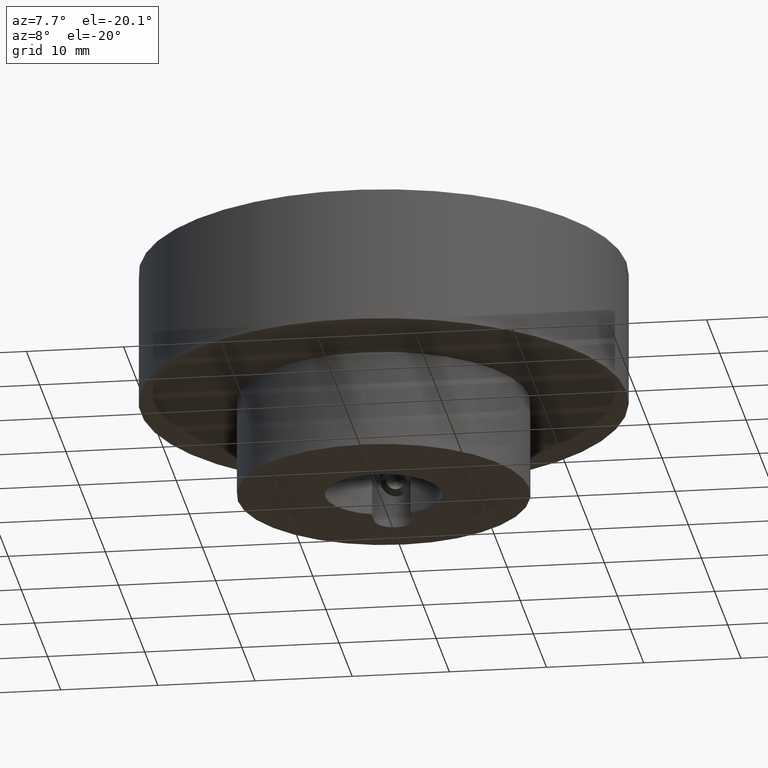
[diagram: clean part render]
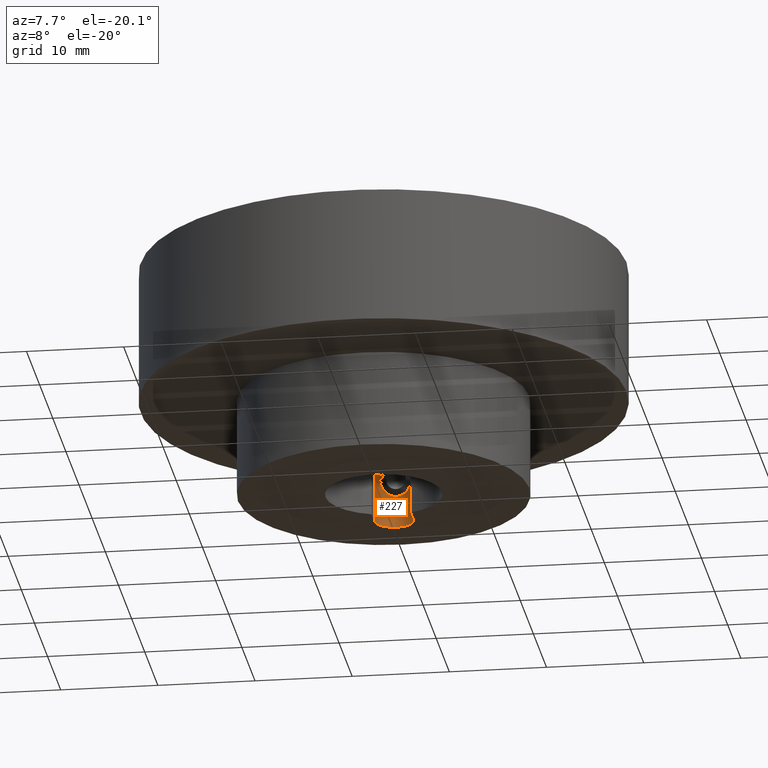
[diagram: same view with one face highlighted and labeled with its STEP entity id]
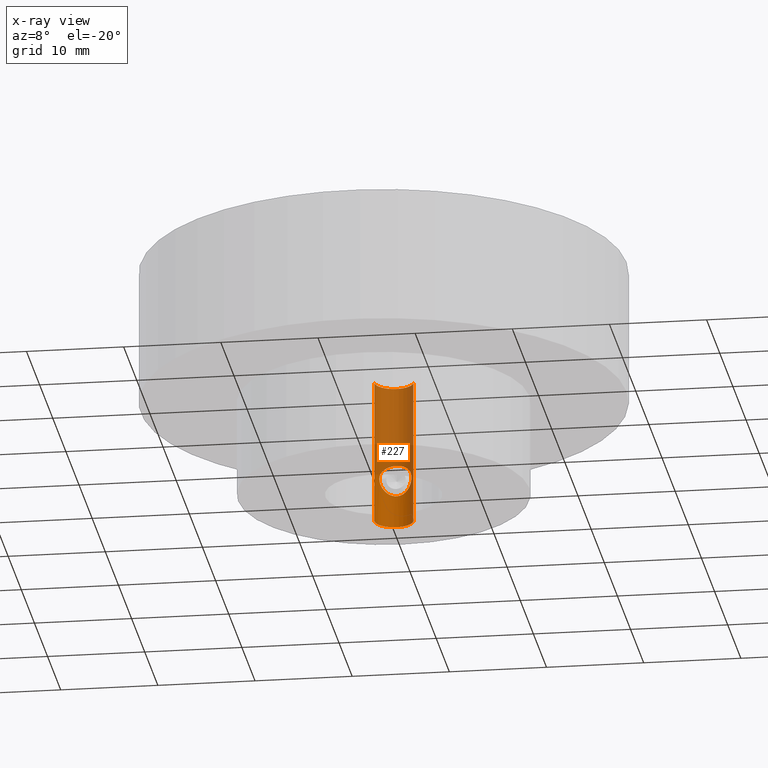
[diagram: x-ray of the same camera — body ghosted, the highlighted face saturated]
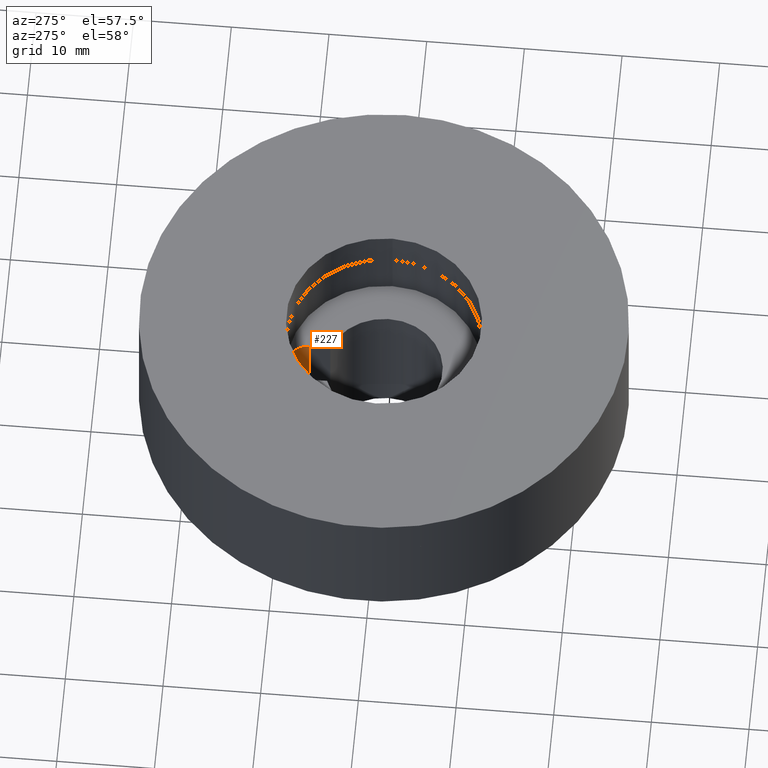
[diagram: same view with one face highlighted and labeled with its STEP entity id]
A machine part, auxiliary view. The second image highlights one B-rep face of the part: STEP entity #227.
The next image is the same camera in x-ray: the body ghosted, the highlighted face saturated — about 69% of this face is hidden behind the body in this view.
A second angle (auxiliary view) of the same face is appended — the face is thin or edge-on in the first view.
In plain terms, the highlighted cylindrical surface (edge-blend (fillet) strip) has radius 2 mm, axis along (-0, -0, 1).
Its self-contained STEP definition (entity closure, byte-faithful):
#227 = ADVANCED_FACE( '', ( #278, #279 ), #280, .F. );
#278 = FACE_BOUND( '', #350, .T. );
#279 = FACE_OUTER_BOUND( '', #351, .T. );
#280 = CYLINDRICAL_SURFACE( '', #352, 2.00000000000000 );
#350 = EDGE_LOOP( '', ( #459 ) );
#351 = EDGE_LOOP( '', ( #460, #461, #462, #463 ) );
#352 = AXIS2_PLACEMENT_3D( '', #464, #465, #466 );
#459 = ORIENTED_EDGE( '', *, *, #579, .T. );
#460 = ORIENTED_EDGE( '', *, *, #567, .T. );
#461 = ORIENTED_EDGE( '', *, *, #578, .F. );
#462 = ORIENTED_EDGE( '', *, *, #576, .F. );
#463 = ORIENTED_EDGE( '', *, *, #570, .T. );
#464 = CARTESIAN_POINT( '', ( 0.000000000000000, 7.80000000000000, 27.3287803508712 ) );
#465 = DIRECTION( '', ( -0.000000000000000, -0.000000000000000, 1.00000000000000 ) );
#466 = DIRECTION( '', ( -1.00000000000000, 6.12303176911189E-017, 0.000000000000000 ) );
#567 = EDGE_CURVE( '', #612, #616, #618, .F. );
#570 = EDGE_CURVE( '', #623, #612, #624, .T. );
#576 = EDGE_CURVE( '', #623, #633, #634, .F. );
#578 = EDGE_CURVE( '', #633, #616, #636, .T. );
#579 = EDGE_CURVE( '', #637, #637, #638, .T. );
#612 = VERTEX_POINT( '', #692 );
#616 = VERTEX_POINT( '', #697 );
#618 = CIRCLE( '', #700, 2.00000000000000 );
#623 = VERTEX_POINT( '', #705 );
#624 = LINE( '', #706, #707 );
#633 = VERTEX_POINT( '', #719 );
#634 = CIRCLE( '', #720, 2.00000000000000 );
#636 = LINE( '', #723, #724 );
#637 = VERTEX_POINT( '', #725 );
#638 = B_SPLINE_CURVE_WITH_KNOTS( '', 3, ( #726, #727, #728, #729, #730, #731, #732, #733, #734, #735, #736, #737, #738, #739, #740, #741, #742, #743, #744, #745, #746, #747, #748, #749, #750, #751, #752, #753, #754, #755, #756, #757, #758, #759, #760, #761, #762, #763, #764, #765, #766, #767, #768, #769, #770, #771, #772, #773, #774, #775, #776, #777, #778, #779 ), .UNSPECIFIED., .T., .F., ( 2, 2, 2, 2, 2, 2, 2, 2, 2, 2, 2, 2, 2, 2, 2, 2, 2, 2, 2, 2, 2, 2, 2, 2, 2, 2, 2, 2, 2 ), ( -0.000344037228202838, 0.000000000000000, 0.000688074456405687, 0.00103211168460853, 0.00137614891281138, 0.00172018614101423, 0.00206422336921707, 0.00240826059741992, 0.00275229782562277, 0.00309633505382561, 0.00344037228202846, 0.00412844673843415, 0.00481652119483985, 0.00516055842304269, 0.00550459565124554, 0.00584863287944839, 0.00619267010765123, 0.00688074456405692, 0.00722478179225977, 0.00756881902046262, 0.00791285624866546, 0.00825689347686831, 0.00860093070507115, 0.00894496793327400, 0.00963304238967968, 0.0103211168460854, 0.0106651540742882, 0.0110091913024910, 0.0116972657588967 ), .UNSPECIFIED. );
#692 = CARTESIAN_POINT( '', ( -2.00000000000000, 7.80000000000001, -34.0000000000000 ) );
#697 = CARTESIAN_POINT( '', ( 2.00000000000000, 7.80000000000000, -34.0000000000000 ) );
#700 = AXIS2_PLACEMENT_3D( '', #933, #934, #935 );
#705 = CARTESIAN_POINT( '', ( -2.00000000000000, 7.80000000000001, -19.0000000000000 ) );
#706 = CARTESIAN_POINT( '', ( -2.00000000000000, 7.80000000000001, 27.3287803508712 ) );
#707 = VECTOR( '', #942, 1000.00000000000 );
#719 = CARTESIAN_POINT( '', ( 2.00000000000000, 7.80000000000000, -19.0000000000000 ) );
#720 = AXIS2_PLACEMENT_3D( '', #952, #953, #954 );
#723 = CARTESIAN_POINT( '', ( 2.00000000000000, 7.80000000000000, 27.3287803508712 ) );
#724 = VECTOR( '', #956, 1000.00000000000 );
#725 = CARTESIAN_POINT( '', ( -1.65000000000000, 8.93026545554573, -29.0000000000000 ) );
#726 = CARTESIAN_POINT( '', ( -1.65000000000000, 8.93026545554573, -29.1166195440712 ) );
#727 = CARTESIAN_POINT( '', ( -1.65000000000000, 8.93026545554573, -28.7667609118576 ) );
#728 = CARTESIAN_POINT( '', ( -1.60012076508522, 9.00639722232373, -28.5464014915561 ) );
#729 = CARTESIAN_POINT( '', ( -1.47747355713550, 9.14945065422459, -28.2580556588293 ) );
#730 = CARTESIAN_POINT( '', ( -1.42784573692154, 9.20259080836613, -28.1669054717123 ) );
#731 = CARTESIAN_POINT( '', ( -1.31504410401640, 9.30886163336797, -27.9982770113451 ) );
#732 = CARTESIAN_POINT( '', ( -1.25157766873091, 9.36248368621120, -27.9199693697682 ) );
#733 = CARTESIAN_POINT( '', ( -1.10896157900165, 9.46673517597734, -27.7739832630005 ) );
#734 = CARTESIAN_POINT( '', ( -1.02903790828480, 9.51773971456044, -27.7059334057107 ) );
#735 = CARTESIAN_POINT( '', ( -0.856682814178596, 9.60987383525935, -27.5859201143381 ) );
#736 = CARTESIAN_POINT( '', ( -0.763858430997309, 9.65147138169935, -27.5333204382522 ) );
#737 = CARTESIAN_POINT( '', ( -0.562162485484357, 9.72234214430507, -27.4448144871532 ) );
#738 = CARTESIAN_POINT( '', ( -0.455548898050379, 9.75066416340700, -27.4101022733253 ) );
#739 = CARTESIAN_POINT( '', ( -0.234277330202582, 9.78940433533969, -27.3628030929807 ) );
#740 = CARTESIAN_POINT( '', ( -0.117883540801112, 9.79980023773303, -27.3502421362479 ) );
#741 = CARTESIAN_POINT( '', ( 0.111004914973130, 9.80019384782593, -27.3497650327740 ) );
#742 = CARTESIAN_POINT( '', ( 0.226590917957304, 9.79033246928929, -27.3616771125469 ) );
#743 = CARTESIAN_POINT( '', ( 0.449321649122572, 9.75214672554030, -27.4082853951530 ) );
#744 = CARTESIAN_POINT( '', ( 0.555441039736006, 9.72432247574953, -27.4423701927425 ) );
#745 = CARTESIAN_POINT( '', ( 0.859727656273949, 9.61851459005114, -27.5744229879247 ) );
#746 = CARTESIAN_POINT( '', ( 1.03379566488078, 9.52125721912374, -27.6978316209576 ) );
#747 = CARTESIAN_POINT( '', ( 1.32057688624953, 9.31246043869430, -27.9898254350818 ) );
#748 = CARTESIAN_POINT( '', ( 1.43534896130710, 9.19842714257270, -28.1598905277389 ) );
#749 = CARTESIAN_POINT( '', ( 1.55828404304553, 9.05527173139605, -28.4476156386023 ) );
#750 = CARTESIAN_POINT( '', ( 1.59164625305185, 9.01167793877341, -28.5511662625683 ) );
#751 = CARTESIAN_POINT( '', ( 1.63738157984107, 8.94912261493773, -28.7681140782453 ) );
#752 = CARTESIAN_POINT( '', ( 1.64992182341530, 8.93037958030435, -28.8840498271493 ) );
#753 = CARTESIAN_POINT( '', ( 1.65007741924368, 8.93015243637892, -29.1137144514487 ) );
#754 = CARTESIAN_POINT( '', ( 1.63775649235365, 8.94857901132114, -29.2292234485254 ) );
#755 = CARTESIAN_POINT( '', ( 1.59237347100221, 9.01071334441409, -29.4462470688405 ) );
#756 = CARTESIAN_POINT( '', ( 1.55969449927092, 9.05353764184190, -29.5485743122417 ) );
#757 = CARTESIAN_POINT( '', ( 1.43616111508901, 9.19766070767590, -29.8392044327396 ) );
#758 = CARTESIAN_POINT( '', ( 1.32341717265857, 9.31002216372019, -30.0065920571153 ) );
#759 = CARTESIAN_POINT( '', ( 1.10811519562777, 9.46732741240978, -30.2268336720208 ) );
#760 = CARTESIAN_POINT( '', ( 1.02981636130814, 9.51724166785362, -30.2934012680302 ) );
#761 = CARTESIAN_POINT( '', ( 0.858506931735993, 9.60897941723831, -30.4129311470561 ) );
#762 = CARTESIAN_POINT( '', ( 0.764379971993918, 9.65124564165861, -30.4663943805358 ) );
#763 = CARTESIAN_POINT( '', ( 0.563053380607052, 9.72207129366535, -30.5548505109622 ) );
#764 = CARTESIAN_POINT( '', ( 0.457347821313278, 9.75029318370655, -30.5894437825022 ) );
#765 = CARTESIAN_POINT( '', ( 0.234391190489805, 9.78943994679231, -30.6372413802539 ) );
#766 = CARTESIAN_POINT( '', ( 0.119229438324813, 9.79972698894466, -30.6496690770894 ) );
#767 = CARTESIAN_POINT( '', ( -0.109887280319390, 9.80026210155093, -30.6503176992604 ) );
#768 = CARTESIAN_POINT( '', ( -0.226576431453152, 9.79031431562908, -30.6383003779882 ) );
#769 = CARTESIAN_POINT( '', ( -0.448625335361421, 9.75228667535277, -30.5918857736277 ) );
#770 = CARTESIAN_POINT( '', ( -0.556303654386258, 9.72404956704465, -30.5572912380652 ) );
#771 = CARTESIAN_POINT( '', ( -0.859358785565144, 9.61858858650968, -30.4256652839365 ) );
#772 = CARTESIAN_POINT( '', ( -1.03432912193654, 9.52087337902725, -30.3016337029966 ) );
#773 = CARTESIAN_POINT( '', ( -1.32011079048624, 9.31279523398656, -30.0106406533008 ) );
#774 = CARTESIAN_POINT( '', ( -1.43522244996224, 9.19856650739409, -29.8403616166291 ) );
#775 = CARTESIAN_POINT( '', ( -1.55826686879216, 9.05529570410510, -29.5524465110030 ) );
#776 = CARTESIAN_POINT( '', ( -1.59165072054812, 9.01167283795077, -29.4488412213579 ) );
#777 = CARTESIAN_POINT( '', ( -1.63741341322644, 8.94907806376900, -29.2317062200234 ) );
#778 = CARTESIAN_POINT( '', ( -1.65000000000000, 8.93026545554573, -29.1166195440712 ) );
#779 = CARTESIAN_POINT( '', ( -1.65000000000000, 8.93026545554573, -28.7667609118576 ) );
#933 = CARTESIAN_POINT( '', ( 0.000000000000000, 7.80000000000000, -34.0000000000000 ) );
#934 = DIRECTION( '', ( 0.000000000000000, -0.000000000000000, 1.00000000000000 ) );
#935 = DIRECTION( '', ( 1.00000000000000, 0.000000000000000, 0.000000000000000 ) );
#942 = DIRECTION( '', ( 0.000000000000000, 0.000000000000000, -1.00000000000000 ) );
#952 = CARTESIAN_POINT( '', ( 0.000000000000000, 7.80000000000000, -19.0000000000000 ) );
#953 = DIRECTION( '', ( 0.000000000000000, -0.000000000000000, 1.00000000000000 ) );
#954 = DIRECTION( '', ( 1.00000000000000, 0.000000000000000, 0.000000000000000 ) );
#956 = DIRECTION( '', ( 0.000000000000000, 0.000000000000000, -1.00000000000000 ) );